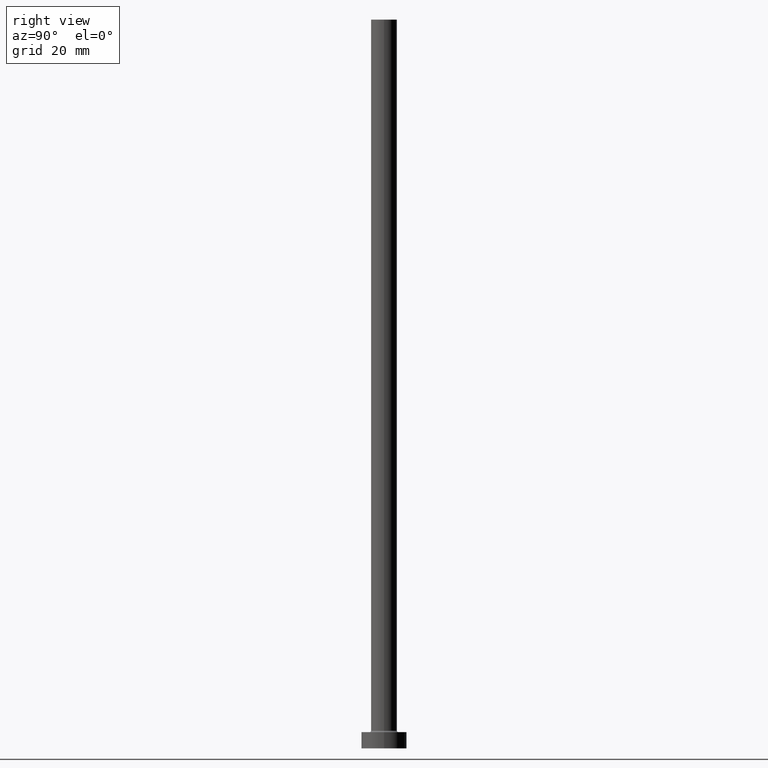
[diagram: clean part render]
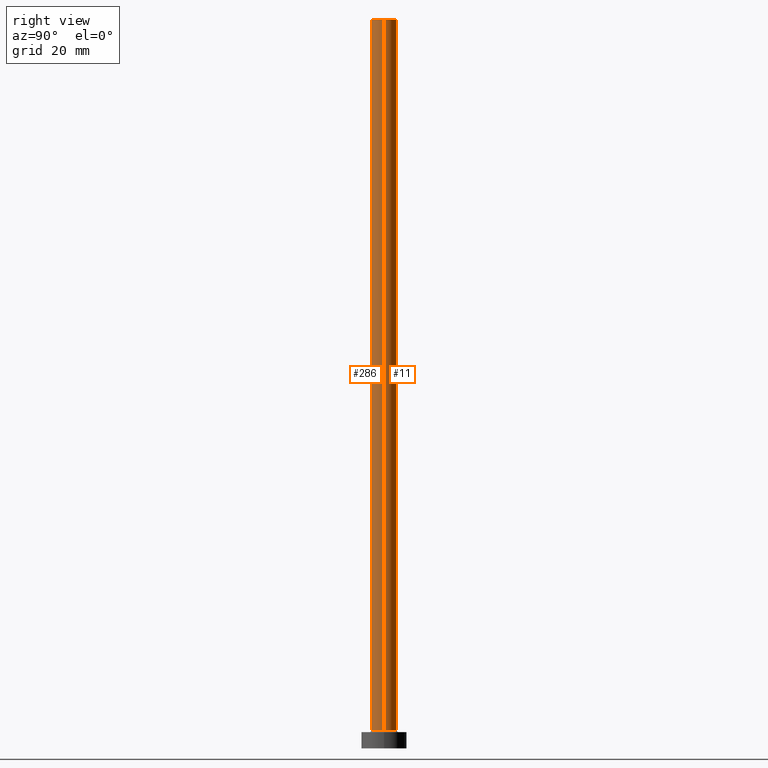
[diagram: same view with one multi-face feature highlighted, each face labeled with its STEP entity id]
A machine part, right view. The highlighted faces form ONE feature: a constant-radius fillet chain: 2 tangent blend faces with common blend radius 4 mm. The faces share edges in the B-rep.
Their STEP definitions:
[1] entity #11 (Cylinder):
#11 = ADVANCED_FACE ( 'NONE', ( #149 ), #333, .T. ) ;
#20 = CARTESIAN_POINT ( 'NONE',  ( -4.000000000000000000, 0.000000000000000000, 225.0000000000000000 ) ) ;
#47 = LINE ( 'NONE', #429, #355 ) ;
#56 = CARTESIAN_POINT ( 'NONE',  ( 4.000000000000000000, 4.898587196589412829E-16, 225.0000000000000000 ) ) ;
#66 = AXIS2_PLACEMENT_3D ( 'NONE', #406, #90, #127 ) ;
#71 = ORIENTED_EDGE ( 'NONE', *, *, #160, .F. ) ;
#79 = DIRECTION ( 'NONE',  ( 0.000000000000000000, 0.000000000000000000, 1.000000000000000000 ) ) ;
#80 = EDGE_CURVE ( 'NONE', #354, #162, #420, .T. ) ;
#81 = CARTESIAN_POINT ( 'NONE',  ( 0.000000000000000000, 0.000000000000000000, 225.0000000000000000 ) ) ;
#90 = DIRECTION ( 'NONE',  ( 0.000000000000000000, 0.000000000000000000, 1.000000000000000000 ) ) ;
#96 = ORIENTED_EDGE ( 'NONE', *, *, #402, .F. ) ;
#102 = AXIS2_PLACEMENT_3D ( 'NONE', #404, #79, #151 ) ;
#112 = EDGE_CURVE ( 'NONE', #451, #354, #196, .T. ) ;
#115 = AXIS2_PLACEMENT_3D ( 'NONE', #81, #289, #430 ) ;
#127 = DIRECTION ( 'NONE',  ( 1.000000000000000000, 0.000000000000000000, 0.000000000000000000 ) ) ;
#149 = FACE_OUTER_BOUND ( 'NONE', #263, .T. ) ;
#151 = DIRECTION ( 'NONE',  ( 1.000000000000000000, 0.000000000000000000, 0.000000000000000000 ) ) ;
#160 = EDGE_CURVE ( 'NONE', #425, #162, #47, .T. ) ;
#162 = VERTEX_POINT ( 'NONE', #179 ) ;
#179 = CARTESIAN_POINT ( 'NONE',  ( -4.000000000000000000, 0.000000000000000000, 5.500000000000005329 ) ) ;
#187 = DIRECTION ( 'NONE',  ( -0.000000000000000000, -0.000000000000000000, -1.000000000000000000 ) ) ;
#196 = LINE ( 'NONE', #56, #382 ) ;
#224 = ORIENTED_EDGE ( 'NONE', *, *, #112, .T. ) ;
#254 = DIRECTION ( 'NONE',  ( -0.000000000000000000, -0.000000000000000000, -1.000000000000000000 ) ) ;
#263 = EDGE_LOOP ( 'NONE', ( #96, #224, #303, #71 ) ) ;
#289 = DIRECTION ( 'NONE',  ( -0.000000000000000000, -0.000000000000000000, -1.000000000000000000 ) ) ;
#295 = CARTESIAN_POINT ( 'NONE',  ( 4.000000000000000000, 4.898587196589412829E-16, 5.500000000000005329 ) ) ;
#303 = ORIENTED_EDGE ( 'NONE', *, *, #80, .T. ) ;
#322 = CIRCLE ( 'NONE', #66, 4.000000000000000000 ) ;
#333 = CYLINDRICAL_SURFACE ( 'NONE', #115, 4.000000000000000000 ) ;
#354 = VERTEX_POINT ( 'NONE', #295 ) ;
#355 = VECTOR ( 'NONE', #187, 1000.000000000000000 ) ;
#382 = VECTOR ( 'NONE', #254, 1000.000000000000000 ) ;
#402 = EDGE_CURVE ( 'NONE', #451, #425, #322, .T. ) ;
#404 = CARTESIAN_POINT ( 'NONE',  ( 0.000000000000000000, 0.000000000000000000, 5.500000000000005329 ) ) ;
#406 = CARTESIAN_POINT ( 'NONE',  ( 0.000000000000000000, 0.000000000000000000, 225.0000000000000000 ) ) ;
#420 = CIRCLE ( 'NONE', #102, 4.000000000000000000 ) ;
#425 = VERTEX_POINT ( 'NONE', #20 ) ;
#429 = CARTESIAN_POINT ( 'NONE',  ( -4.000000000000000000, 0.000000000000000000, 225.0000000000000000 ) ) ;
#430 = DIRECTION ( 'NONE',  ( -1.000000000000000000, 0.000000000000000000, 0.000000000000000000 ) ) ;
#450 = CARTESIAN_POINT ( 'NONE',  ( 4.000000000000000000, 4.898587196589412829E-16, 225.0000000000000000 ) ) ;
#451 = VERTEX_POINT ( 'NONE', #450 ) ;
[2] entity #286 (Cylinder):
#20 = CARTESIAN_POINT ( 'NONE',  ( -4.000000000000000000, 0.000000000000000000, 225.0000000000000000 ) ) ;
#47 = LINE ( 'NONE', #429, #355 ) ;
#56 = CARTESIAN_POINT ( 'NONE',  ( 4.000000000000000000, 4.898587196589412829E-16, 225.0000000000000000 ) ) ;
#67 = EDGE_LOOP ( 'NONE', ( #460, #191, #138, #135 ) ) ;
#78 = DIRECTION ( 'NONE',  ( 1.000000000000000000, 0.000000000000000000, 0.000000000000000000 ) ) ;
#112 = EDGE_CURVE ( 'NONE', #451, #354, #196, .T. ) ;
#122 = EDGE_CURVE ( 'NONE', #425, #451, #455, .T. ) ;
#135 = ORIENTED_EDGE ( 'NONE', *, *, #292, .T. ) ;
#138 = ORIENTED_EDGE ( 'NONE', *, *, #160, .T. ) ;
#154 = AXIS2_PLACEMENT_3D ( 'NONE', #235, #164, #383 ) ;
#160 = EDGE_CURVE ( 'NONE', #425, #162, #47, .T. ) ;
#162 = VERTEX_POINT ( 'NONE', #179 ) ;
#164 = DIRECTION ( 'NONE',  ( -0.000000000000000000, -0.000000000000000000, -1.000000000000000000 ) ) ;
#179 = CARTESIAN_POINT ( 'NONE',  ( -4.000000000000000000, 0.000000000000000000, 5.500000000000005329 ) ) ;
#187 = DIRECTION ( 'NONE',  ( -0.000000000000000000, -0.000000000000000000, -1.000000000000000000 ) ) ;
#191 = ORIENTED_EDGE ( 'NONE', *, *, #122, .F. ) ;
#196 = LINE ( 'NONE', #56, #382 ) ;
#221 = FACE_OUTER_BOUND ( 'NONE', #67, .T. ) ;
#235 = CARTESIAN_POINT ( 'NONE',  ( 0.000000000000000000, 0.000000000000000000, 225.0000000000000000 ) ) ;
#251 = AXIS2_PLACEMENT_3D ( 'NONE', #257, #358, #78 ) ;
#254 = DIRECTION ( 'NONE',  ( -0.000000000000000000, -0.000000000000000000, -1.000000000000000000 ) ) ;
#257 = CARTESIAN_POINT ( 'NONE',  ( 0.000000000000000000, 0.000000000000000000, 225.0000000000000000 ) ) ;
#286 = ADVANCED_FACE ( 'NONE', ( #221 ), #361, .T. ) ;
#292 = EDGE_CURVE ( 'NONE', #162, #354, #408, .T. ) ;
#295 = CARTESIAN_POINT ( 'NONE',  ( 4.000000000000000000, 4.898587196589412829E-16, 5.500000000000005329 ) ) ;
#354 = VERTEX_POINT ( 'NONE', #295 ) ;
#355 = VECTOR ( 'NONE', #187, 1000.000000000000000 ) ;
#358 = DIRECTION ( 'NONE',  ( 0.000000000000000000, 0.000000000000000000, 1.000000000000000000 ) ) ;
#361 = CYLINDRICAL_SURFACE ( 'NONE', #154, 4.000000000000000000 ) ;
#382 = VECTOR ( 'NONE', #254, 1000.000000000000000 ) ;
#383 = DIRECTION ( 'NONE',  ( -1.000000000000000000, 0.000000000000000000, 0.000000000000000000 ) ) ;
#388 = DIRECTION ( 'NONE',  ( 0.000000000000000000, 0.000000000000000000, 1.000000000000000000 ) ) ;
#393 = AXIS2_PLACEMENT_3D ( 'NONE', #457, #388, #452 ) ;
#408 = CIRCLE ( 'NONE', #393, 4.000000000000000000 ) ;
#425 = VERTEX_POINT ( 'NONE', #20 ) ;
#429 = CARTESIAN_POINT ( 'NONE',  ( -4.000000000000000000, 0.000000000000000000, 225.0000000000000000 ) ) ;
#450 = CARTESIAN_POINT ( 'NONE',  ( 4.000000000000000000, 4.898587196589412829E-16, 225.0000000000000000 ) ) ;
#451 = VERTEX_POINT ( 'NONE', #450 ) ;
#452 = DIRECTION ( 'NONE',  ( 1.000000000000000000, 0.000000000000000000, 0.000000000000000000 ) ) ;
#455 = CIRCLE ( 'NONE', #251, 4.000000000000000000 ) ;
#457 = CARTESIAN_POINT ( 'NONE',  ( 0.000000000000000000, 0.000000000000000000, 5.500000000000005329 ) ) ;
#460 = ORIENTED_EDGE ( 'NONE', *, *, #112, .F. ) ;